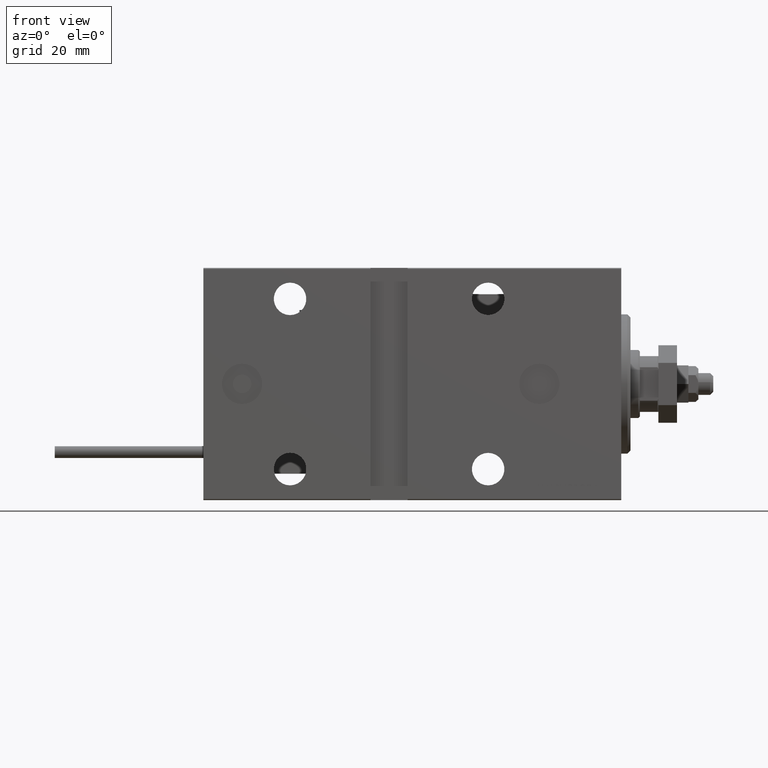
[diagram: clean part render]
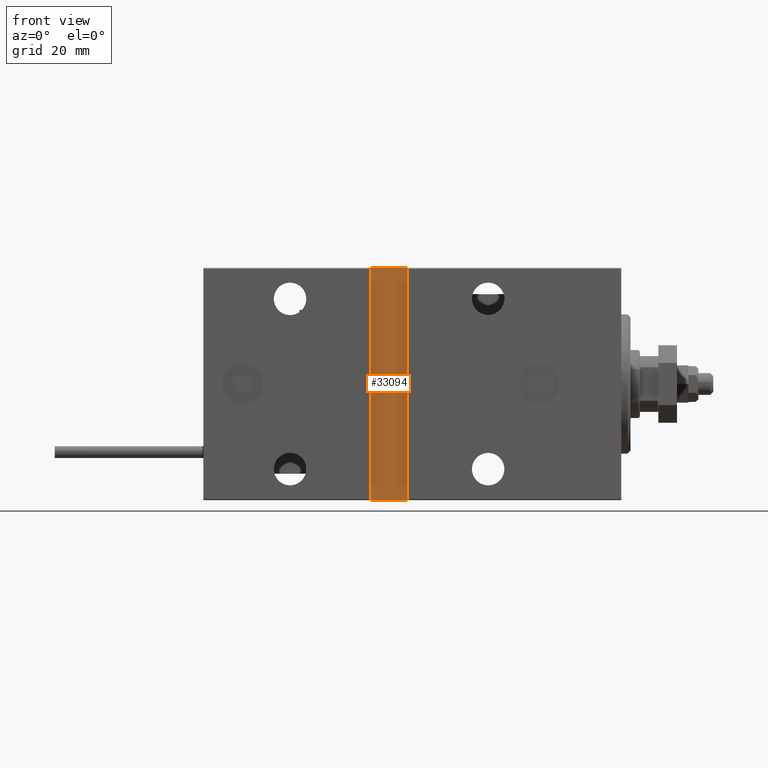
[diagram: same view with one face highlighted and labeled with its STEP entity id]
A machine part, front view. The second image highlights one B-rep face of the part: STEP entity #33094.
In plain terms, the highlighted planar face has unit normal (-0, 1, -0).
Its self-contained STEP definition (entity closure, byte-faithful):
#1321 = CARTESIAN_POINT ( 'NONE',  ( 69.00000000000000000, 24.50000000000000355, -37.50000000000009237 ) ) ;
#2273 = ORIENTED_EDGE ( 'NONE', *, *, #10733, .T. ) ;
#2986 = ORIENTED_EDGE ( 'NONE', *, *, #15852, .T. ) ;
#4832 = EDGE_LOOP ( 'NONE', ( #7319, #2986, #2273, #17289 ) ) ;
#5320 = DIRECTION ( 'NONE',  ( 1.000000000000000000, -0.000000000000000000, -0.000000000000000000 ) ) ;
#7003 = VERTEX_POINT ( 'NONE', #31807 ) ;
#7319 = ORIENTED_EDGE ( 'NONE', *, *, #47444, .T. ) ;
#8468 = CARTESIAN_POINT ( 'NONE',  ( 81.00000000000000000, 24.49999999999999645, 37.50000000000000711 ) ) ;
#10733 = EDGE_CURVE ( 'NONE', #42624, #43829, #40475, .T. ) ;
#15852 = EDGE_CURVE ( 'NONE', #7003, #42624, #16653, .T. ) ;
#16640 = VECTOR ( 'NONE', #32550, 1000.000000000000000 ) ;
#16653 = LINE ( 'NONE', #43826, #35855 ) ;
#17289 = ORIENTED_EDGE ( 'NONE', *, *, #46962, .T. ) ;
#19780 = PLANE ( 'NONE',  #20480 ) ;
#20480 = AXIS2_PLACEMENT_3D ( 'NONE', #47200, #30852, #35136 ) ;
#23256 = DIRECTION ( 'NONE',  ( 0.000000000000000000, -9.251858538542959255E-17, 1.000000000000000000 ) ) ;
#23906 = VECTOR ( 'NONE', #23256, 1000.000000000000000 ) ;
#29017 = CARTESIAN_POINT ( 'NONE',  ( 81.00000000000001421, 24.50000000000000355, -37.50000000000009237 ) ) ;
#30852 = DIRECTION ( 'NONE',  ( 0.000000000000000000, -1.000000000000000000, -9.251858538542959255E-17 ) ) ;
#31807 = CARTESIAN_POINT ( 'NONE',  ( 69.00000000000000000, 24.49999999999999645, 37.50000000000000711 ) ) ;
#32207 = VERTEX_POINT ( 'NONE', #1321 ) ;
#32550 = DIRECTION ( 'NONE',  ( -1.000000000000000000, 0.000000000000000000, 0.000000000000000000 ) ) ;
#33094 = ADVANCED_FACE ( 'NONE', ( #46950 ), #19780, .F. ) ;
#33547 = CARTESIAN_POINT ( 'NONE',  ( 81.00000000000001421, 24.50000000000000355, -37.50000000000000711 ) ) ;
#35136 = DIRECTION ( 'NONE',  ( 0.000000000000000000, 9.251858538542959255E-17, -1.000000000000000000 ) ) ;
#35855 = VECTOR ( 'NONE', #5320, 1000.000000000000000 ) ;
#37333 = LINE ( 'NONE', #29017, #16640 ) ;
#40475 = LINE ( 'NONE', #47762, #45982 ) ;
#42622 = LINE ( 'NONE', #46139, #23906 ) ;
#42624 = VERTEX_POINT ( 'NONE', #8468 ) ;
#43826 = CARTESIAN_POINT ( 'NONE',  ( 81.00000000000000000, 24.49999999999999645, 37.50000000000000711 ) ) ;
#43829 = VERTEX_POINT ( 'NONE', #33547 ) ;
#44483 = DIRECTION ( 'NONE',  ( 1.850371707708591851E-16, 9.251858538542959255E-17, -1.000000000000000000 ) ) ;
#45982 = VECTOR ( 'NONE', #44483, 1000.000000000000000 ) ;
#46139 = CARTESIAN_POINT ( 'NONE',  ( 69.00000000000000000, 24.50000000000000355, -37.50000000000009237 ) ) ;
#46950 = FACE_OUTER_BOUND ( 'NONE', #4832, .T. ) ;
#46962 = EDGE_CURVE ( 'NONE', #43829, #32207, #37333, .T. ) ;
#47200 = CARTESIAN_POINT ( 'NONE',  ( 0.000000000000000000, 24.50000000000000000, 2.165775976068010180E-15 ) ) ;
#47444 = EDGE_CURVE ( 'NONE', #32207, #7003, #42622, .T. ) ;
#47762 = CARTESIAN_POINT ( 'NONE',  ( 81.00000000000001421, 24.50000000000000355, -37.50000000000009237 ) ) ;